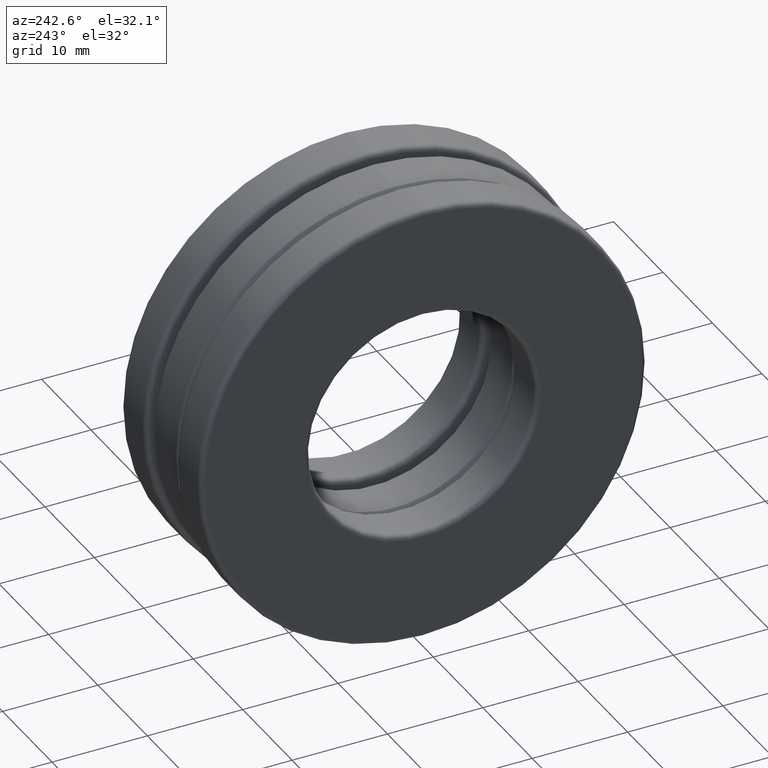
[diagram: clean part render]
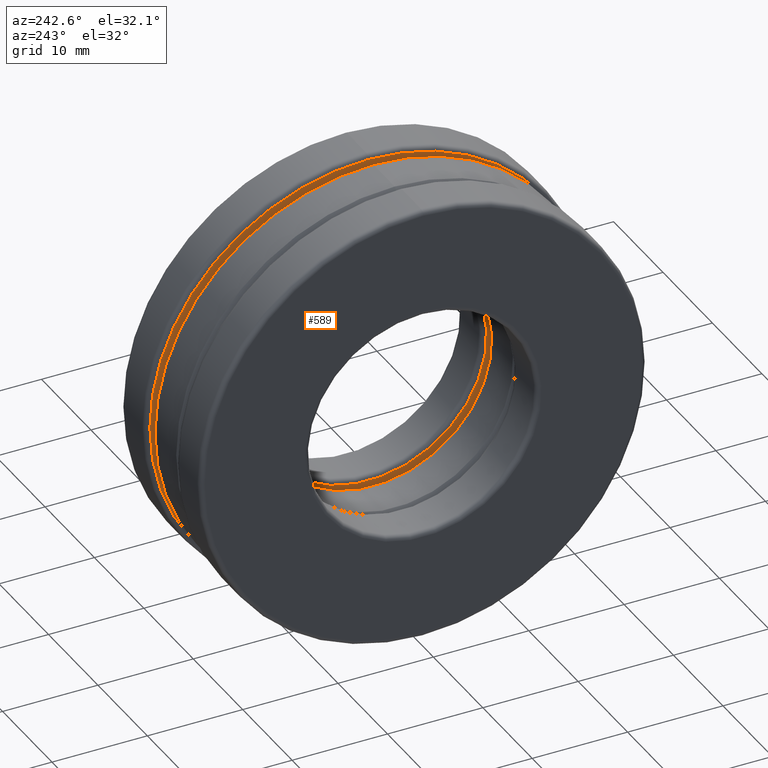
[diagram: same view with one face highlighted and labeled with its STEP entity id]
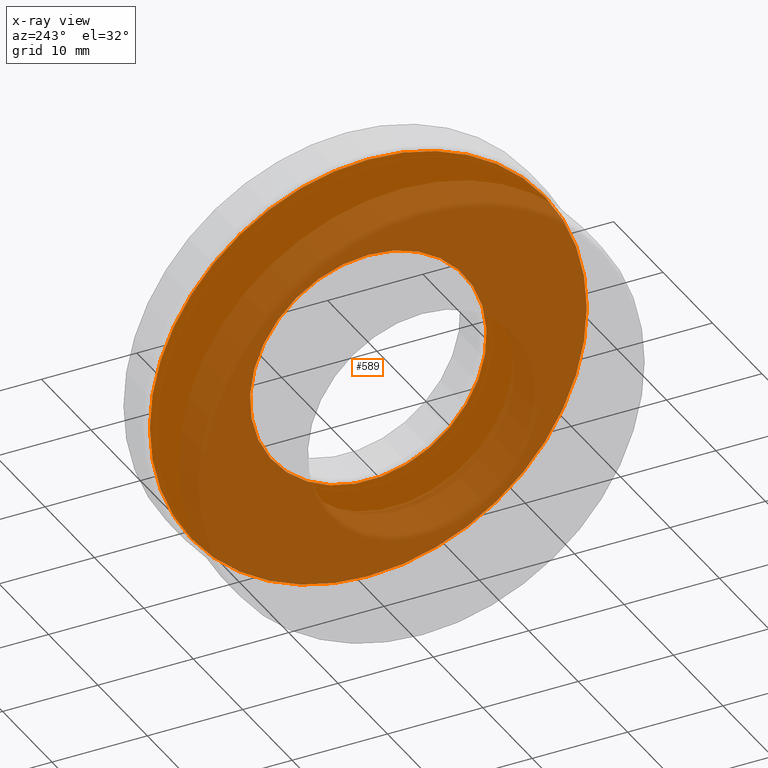
[diagram: x-ray of the same camera — body ghosted, the highlighted face saturated]
A machine part, auxiliary view. The second image highlights one B-rep face of the part: STEP entity #589.
The next image is the same camera in x-ray: the body ghosted, the highlighted face saturated — about 71% of this face is hidden behind the body in this view.
In plain terms, the highlighted planar face has unit normal (1, 0, 0).
Its self-contained STEP definition (entity closure, byte-faithful):
#159 = AXIS2_PLACEMENT_3D ( 'NONE', #1375, #1163, #688 ) ;
#179 = ORIENTED_EDGE ( 'NONE', *, *, #1462, .F. ) ;
#260 = PLANE ( 'NONE',  #681 ) ;
#294 = FACE_OUTER_BOUND ( 'NONE', #1191, .T. ) ;
#356 = EDGE_LOOP ( 'NONE', ( #179 ) ) ;
#374 = VERTEX_POINT ( 'NONE', #1013 ) ;
#377 = DIRECTION ( 'NONE',  ( 1.000000000000000000, 0.0000000000000000000, 0.0000000000000000000 ) ) ;
#394 = CIRCLE ( 'NONE', #159, 0.4887500000000000700 ) ;
#479 = DIRECTION ( 'NONE',  ( 0.0000000000000000000, 0.0000000000000000000, -1.000000000000000000 ) ) ;
#496 = CARTESIAN_POINT ( 'NONE',  ( 0.1250000000000000000, 0.0000000000000000000, 0.0000000000000000000 ) ) ;
#514 = ORIENTED_EDGE ( 'NONE', *, *, #919, .T. ) ;
#589 = ADVANCED_FACE ( 'NONE', ( #937, #294 ), #260, .F. ) ;
#681 = AXIS2_PLACEMENT_3D ( 'NONE', #825, #377, #479 ) ;
#688 = DIRECTION ( 'NONE',  ( 0.0000000000000000000, 0.0000000000000000000, 1.000000000000000000 ) ) ;
#741 = CIRCLE ( 'NONE', #1245, 0.9018749999999997600 ) ;
#825 = CARTESIAN_POINT ( 'NONE',  ( 0.1250000000000000000, 0.0000000000000000000, 0.0000000000000000000 ) ) ;
#919 = EDGE_CURVE ( 'NONE', #1258, #1258, #741, .T. ) ;
#937 = FACE_BOUND ( 'NONE', #356, .T. ) ;
#981 = DIRECTION ( 'NONE',  ( 0.0000000000000000000, 0.0000000000000000000, 1.000000000000000000 ) ) ;
#1013 = CARTESIAN_POINT ( 'NONE',  ( 0.1250000000000000000, 0.0000000000000000000, 0.4887500000000000700 ) ) ;
#1163 = DIRECTION ( 'NONE',  ( -1.000000000000000000, -0.0000000000000000000, -0.0000000000000000000 ) ) ;
#1191 = EDGE_LOOP ( 'NONE', ( #514 ) ) ;
#1202 = DIRECTION ( 'NONE',  ( -1.000000000000000000, -0.0000000000000000000, -0.0000000000000000000 ) ) ;
#1245 = AXIS2_PLACEMENT_3D ( 'NONE', #496, #1202, #981 ) ;
#1258 = VERTEX_POINT ( 'NONE', #1287 ) ;
#1287 = CARTESIAN_POINT ( 'NONE',  ( 0.1250000000000000000, 0.0000000000000000000, 0.9018749999999997600 ) ) ;
#1375 = CARTESIAN_POINT ( 'NONE',  ( 0.1250000000000000000, 0.0000000000000000000, 0.0000000000000000000 ) ) ;
#1462 = EDGE_CURVE ( 'NONE', #374, #374, #394, .T. ) ;